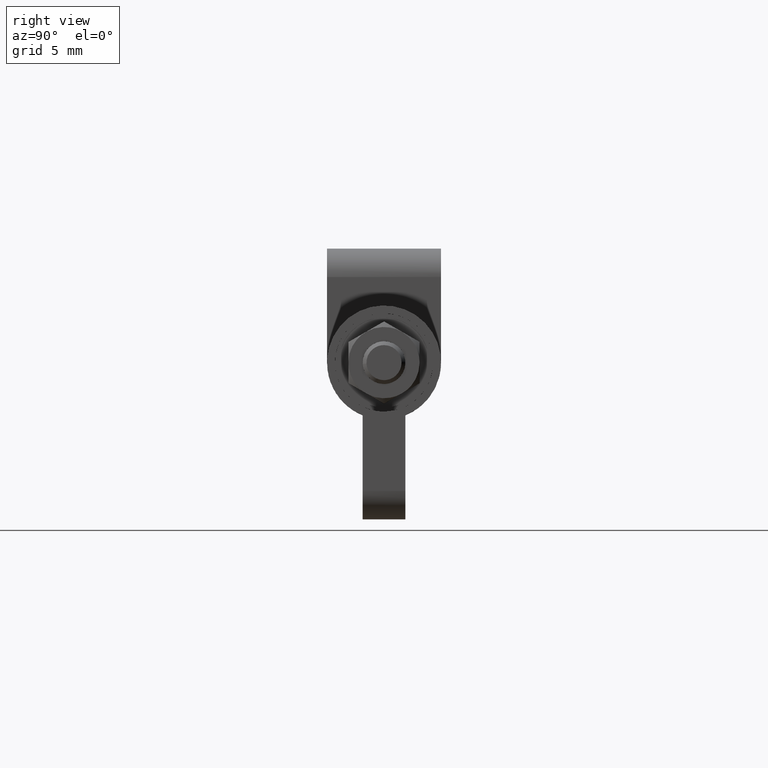
[diagram: clean part render]
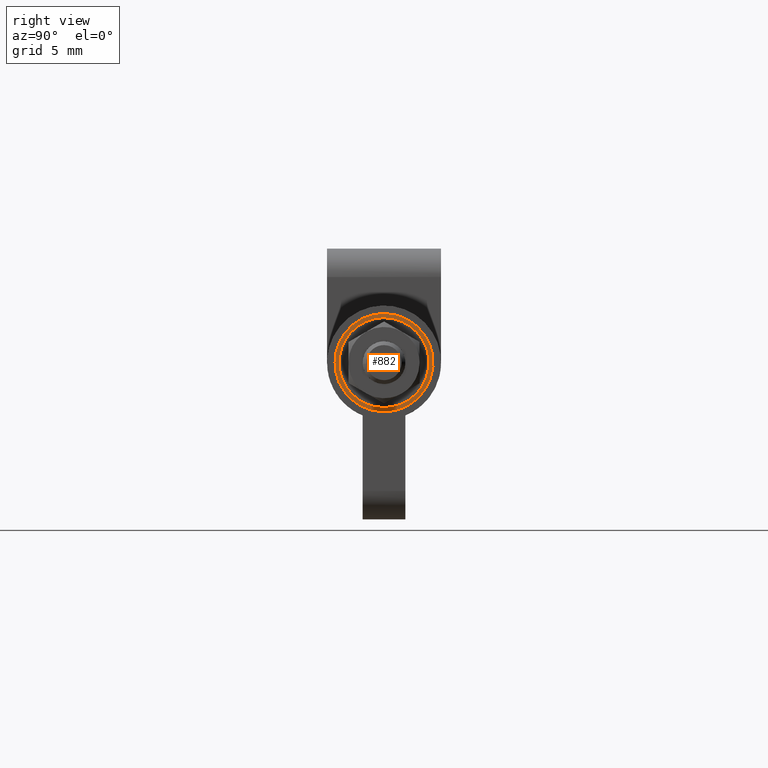
[diagram: same view with one face highlighted and labeled with its STEP entity id]
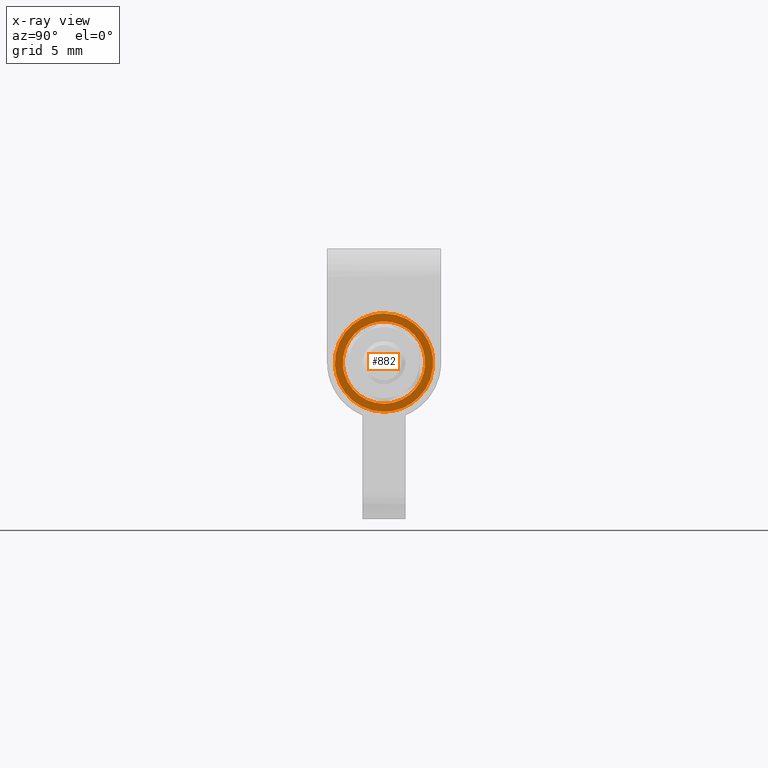
[diagram: x-ray of the same camera — body ghosted, the highlighted face saturated]
A machine part, right view. The second image highlights one B-rep face of the part: STEP entity #882.
The next image is the same camera in x-ray: the body ghosted, the highlighted face saturated — about 0% of this face is hidden behind the body in this view.
In plain terms, the highlighted face is a freeform B-spline surface patch.
Its self-contained STEP definition (entity closure, byte-faithful):
#515=CARTESIAN_POINT('',(19.700000000000021,2.866577680028313,0.340732125571846));
#516=VERTEX_POINT('',#515);
#517=CARTESIAN_POINT('',(19.699999999999999,0.0,-2.886757000000115));
#518=VERTEX_POINT('',#517);
#519=CARTESIAN_POINT('',(19.700000000000028,2.866577680028314,0.340732125571846));
#520=CARTESIAN_POINT('',(19.699999999999999,2.886757000000116,0.170963606903374));
#521=CARTESIAN_POINT('',(19.699999999999999,2.886757000000115,0.0));
#522=CARTESIAN_POINT('',(19.700000000000006,2.886757000000115,-2.886757000000115));
#523=CARTESIAN_POINT('',(19.699999999999999,0.0,-2.886757000000115));
#531=(BOUNDED_CURVE()B_SPLINE_CURVE(2,(#519,#520,#521,#522,#523),.UNSPECIFIED.,.F.,.U.)B_SPLINE_CURVE_WITH_KNOTS((3,2,3),(0.229562710966540,0.250000000000000,0.500000000000000),.UNSPECIFIED.)CURVE()GEOMETRIC_REPRESENTATION_ITEM()RATIONAL_B_SPLINE_CURVE((0.956027219601888,0.976056226524676,1.0,0.707106781186548,1.0))REPRESENTATION_ITEM(''));
#532=EDGE_CURVE('',#516,#518,#531,.T.);
#573=CARTESIAN_POINT('',(19.699999999999999,-2.881372616286781,-0.176232298862434));
#574=VERTEX_POINT('',#573);
#580=CARTESIAN_POINT('',(19.699999999999999,0.0,-2.886757000000115));
#581=CARTESIAN_POINT('',(19.699999999999992,-2.715589823544061,-2.886757000000115));
#582=CARTESIAN_POINT('',(19.699999999999999,-2.881372616286781,-0.176232298862434));
#590=(BOUNDED_CURVE()B_SPLINE_CURVE(2,(#580,#581,#582),.UNSPECIFIED.,.F.,.U.)B_SPLINE_CURVE_WITH_KNOTS((3,3),(0.500000000000000,0.739332962239525),.UNSPECIFIED.)CURVE()GEOMETRIC_REPRESENTATION_ITEM()RATIONAL_B_SPLINE_CURVE((1.0,0.719603993286029,0.976072041667964))REPRESENTATION_ITEM(''));
#591=EDGE_CURVE('',#518,#574,#590,.T.);
#614=CARTESIAN_POINT('',(19.699999999999999,0.0,2.886757000000115));
#615=VERTEX_POINT('',#614);
#616=CARTESIAN_POINT('',(19.699999999999999,0.0,2.886757000000115));
#617=CARTESIAN_POINT('',(19.699999999999992,2.563947657734294,2.886757000000116));
#618=CARTESIAN_POINT('',(19.700000000000028,2.866577680028314,0.340732125571846));
#626=(BOUNDED_CURVE()B_SPLINE_CURVE(2,(#616,#617,#618),.UNSPECIFIED.,.F.,.U.)B_SPLINE_CURVE_WITH_KNOTS((3,3),(0.0,0.229562710966540),.UNSPECIFIED.)CURVE()GEOMETRIC_REPRESENTATION_ITEM()RATIONAL_B_SPLINE_CURVE((1.0,0.731050554661871,0.956027219601888))REPRESENTATION_ITEM(''));
#627=EDGE_CURVE('',#615,#516,#626,.T.);
#629=CARTESIAN_POINT('',(19.700000000000003,-2.881372616286780,-0.176232298862434));
#630=CARTESIAN_POINT('',(19.700000000000003,-2.886757000000116,-0.088198403342007));
#631=CARTESIAN_POINT('',(19.699999999999999,-2.886757000000115,0.0));
#632=CARTESIAN_POINT('',(19.700000000000006,-2.886757000000115,2.886757000000115));
#633=CARTESIAN_POINT('',(19.699999999999999,0.0,2.886757000000115));
#641=(BOUNDED_CURVE()B_SPLINE_CURVE(2,(#629,#630,#631,#632,#633),.UNSPECIFIED.,.F.,.U.)B_SPLINE_CURVE_WITH_KNOTS((3,2,3),(0.739332962239525,0.750000000000000,1.0),.UNSPECIFIED.)CURVE()GEOMETRIC_REPRESENTATION_ITEM()RATIONAL_B_SPLINE_CURVE((0.976072041667965,0.987502787900519,1.0,0.707106781186548,1.0))REPRESENTATION_ITEM(''));
#642=EDGE_CURVE('',#574,#615,#641,.T.);
#701=CARTESIAN_POINT('',(19.699999999999999,3.425882865949250,0.407218109611242));
#702=VERTEX_POINT('',#701);
#703=CARTESIAN_POINT('',(19.699999999999999,0.0,-3.450000000000000));
#704=VERTEX_POINT('',#703);
#705=CARTESIAN_POINT('',(19.700000000000003,3.425882865949250,0.407218109611242));
#706=CARTESIAN_POINT('',(19.700000000000003,3.449999999999999,0.204323212844995));
#707=CARTESIAN_POINT('',(19.699999999999999,3.450000000000000,0.0));
#708=CARTESIAN_POINT('',(19.700000000000006,3.450000000000000,-3.450000000000000));
#709=CARTESIAN_POINT('',(19.699999999999999,0.0,-3.450000000000000));
#717=(BOUNDED_CURVE()B_SPLINE_CURVE(2,(#705,#706,#707,#708,#709),.UNSPECIFIED.,.F.,.U.)B_SPLINE_CURVE_WITH_KNOTS((3,2,3),(0.229562473511162,0.250000000000000,0.500000000000000),.UNSPECIFIED.)CURVE()GEOMETRIC_REPRESENTATION_ITEM()RATIONAL_B_SPLINE_CURVE((0.956026754179101,0.976055948328397,1.0,0.707106781186548,1.0))REPRESENTATION_ITEM(''));
#718=EDGE_CURVE('',#702,#704,#717,.T.);
#720=CARTESIAN_POINT('',(19.699999999999999,-3.443565054550863,-0.210617461470105));
#721=VERTEX_POINT('',#720);
#722=CARTESIAN_POINT('',(19.699999999999999,0.0,-3.450000000000000));
#723=CARTESIAN_POINT('',(19.700000000000003,-3.245435930683280,-3.450000000000001));
#724=CARTESIAN_POINT('',(19.699999999999999,-3.443565054550863,-0.210617461470105));
#732=(BOUNDED_CURVE()B_SPLINE_CURVE(2,(#722,#723,#724),.UNSPECIFIED.,.F.,.U.)B_SPLINE_CURVE_WITH_KNOTS((3,3),(0.500000000000000,0.739332962234466),.UNSPECIFIED.)CURVE()GEOMETRIC_REPRESENTATION_ITEM()RATIONAL_B_SPLINE_CURVE((1.0,0.719603993291955,0.976072041657124))REPRESENTATION_ITEM(''));
#733=EDGE_CURVE('',#704,#721,#732,.T.);
#800=CARTESIAN_POINT('',(19.699999999999999,0.0,3.450000000000000));
#801=VERTEX_POINT('',#800);
#802=CARTESIAN_POINT('',(19.699999999999999,0.0,3.450000000000000));
#803=CARTESIAN_POINT('',(19.699999999999996,3.064202114450386,3.450000000000000));
#804=CARTESIAN_POINT('',(19.699999999999996,3.425882865949250,0.407218109611242));
#812=(BOUNDED_CURVE()B_SPLINE_CURVE(2,(#802,#803,#804),.UNSPECIFIED.,.F.,.U.)B_SPLINE_CURVE_WITH_KNOTS((3,3),(0.0,0.229562473511162),.UNSPECIFIED.)CURVE()GEOMETRIC_REPRESENTATION_ITEM()RATIONAL_B_SPLINE_CURVE((1.0,0.731050832858151,0.956026754179101))REPRESENTATION_ITEM(''));
#813=EDGE_CURVE('',#801,#702,#812,.T.);
#847=CARTESIAN_POINT('',(19.699999999999999,-3.443565054550863,-0.210617461470105));
#848=CARTESIAN_POINT('',(19.699999999999996,-3.450000000000000,-0.105407033455190));
#849=CARTESIAN_POINT('',(19.699999999999999,-3.450000000000000,0.0));
#850=CARTESIAN_POINT('',(19.700000000000006,-3.450000000000000,3.450000000000000));
#851=CARTESIAN_POINT('',(19.699999999999999,0.0,3.450000000000000));
#859=(BOUNDED_CURVE()B_SPLINE_CURVE(2,(#847,#848,#849,#850,#851),.UNSPECIFIED.,.F.,.U.)B_SPLINE_CURVE_WITH_KNOTS((3,2,3),(0.739332962234467,0.750000000000000,1.0),.UNSPECIFIED.)CURVE()GEOMETRIC_REPRESENTATION_ITEM()RATIONAL_B_SPLINE_CURVE((0.976072041657126,0.987502787894594,1.0,0.707106781186548,1.0))REPRESENTATION_ITEM(''));
#860=EDGE_CURVE('',#721,#801,#859,.T.);
#865=CARTESIAN_POINT('',(19.699999999999999,-3.794571146237497,-3.794655051398724));
#866=CARTESIAN_POINT('',(19.699999999999999,-3.794571146237497,3.794655174780340));
#867=CARTESIAN_POINT('',(19.699999999999999,3.794592244493608,-3.794655051398724));
#868=CARTESIAN_POINT('',(19.699999999999999,3.794592244493608,3.794655174780340));
#869=B_SPLINE_SURFACE_WITH_KNOTS('',1,1,((#865,#867),(#866,#868)),.UNSPECIFIED.,.F.,.F.,.U.,(2,2),(2,2),(0.0,7.589310226179063),(0.0,7.589163390731105),.UNSPECIFIED.);
#870=ORIENTED_EDGE('',*,*,#860,.F.);
#871=ORIENTED_EDGE('',*,*,#733,.F.);
#872=ORIENTED_EDGE('',*,*,#718,.F.);
#873=ORIENTED_EDGE('',*,*,#813,.F.);
#874=EDGE_LOOP('',(#870,#871,#872,#873));
#875=FACE_OUTER_BOUND('',#874,.T.);
#876=ORIENTED_EDGE('',*,*,#591,.T.);
#877=ORIENTED_EDGE('',*,*,#642,.T.);
#878=ORIENTED_EDGE('',*,*,#627,.T.);
#879=ORIENTED_EDGE('',*,*,#532,.T.);
#880=EDGE_LOOP('',(#876,#877,#878,#879));
#881=FACE_BOUND('',#880,.T.);
#882=ADVANCED_FACE('',(#875,#881),#869,.F.);